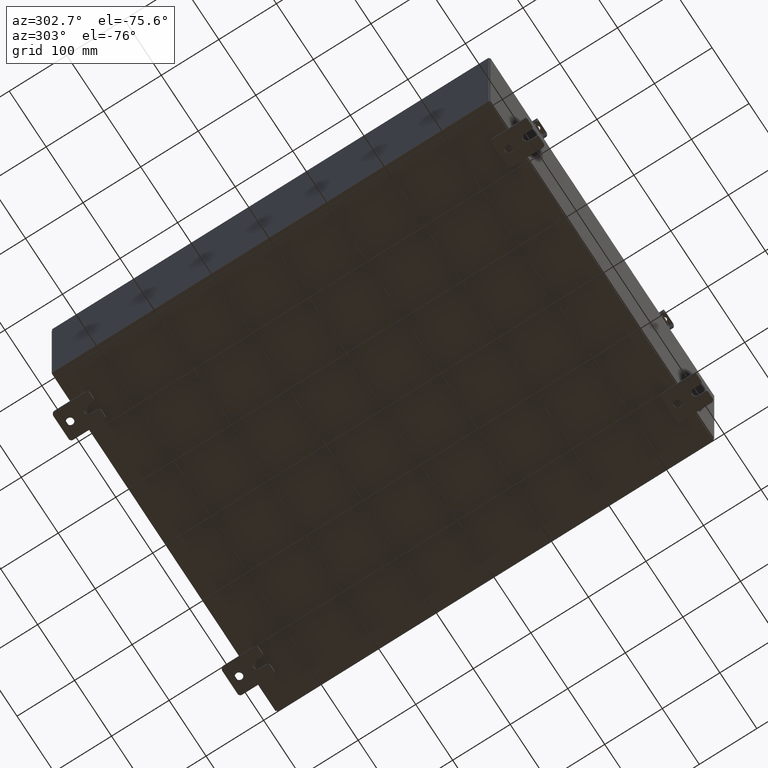
[diagram: clean part render]
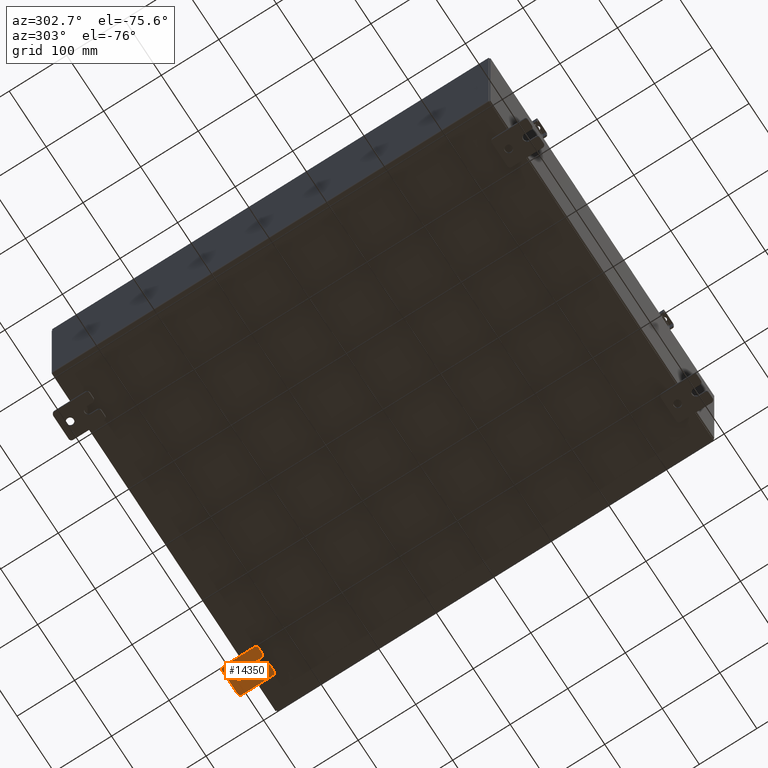
[diagram: same view with one face highlighted and labeled with its STEP entity id]
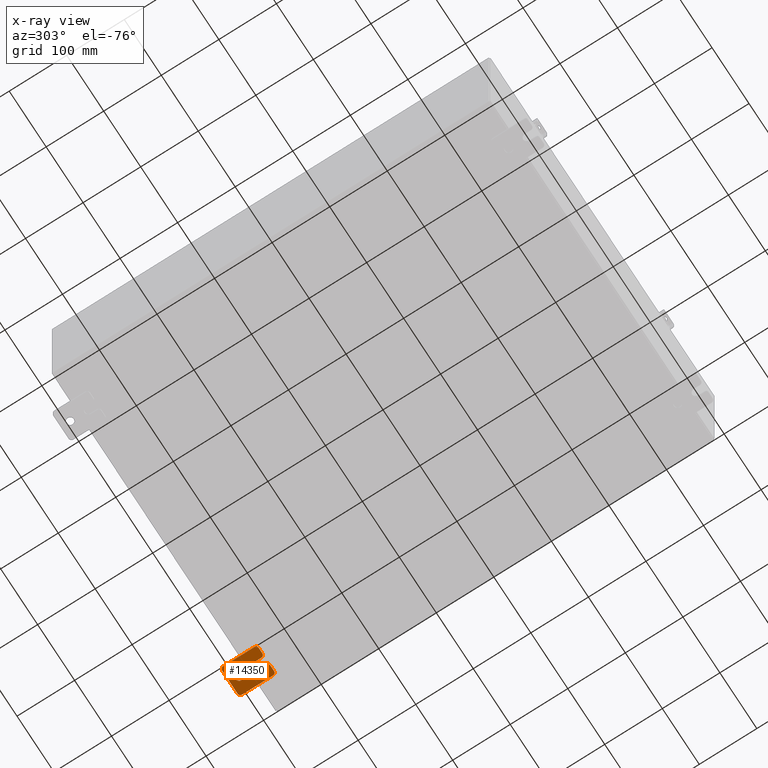
[diagram: x-ray of the same camera — body ghosted, the highlighted face saturated]
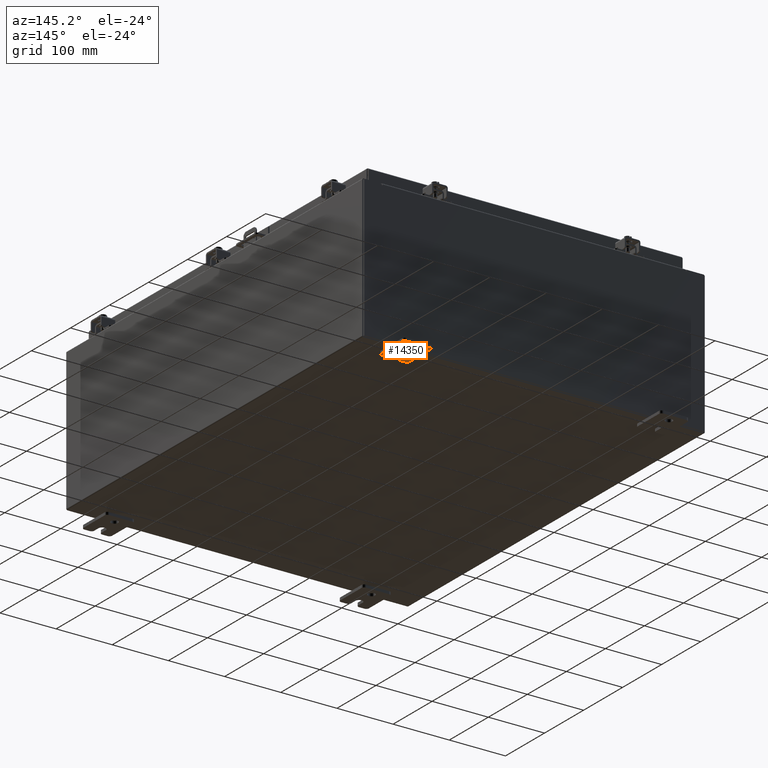
[diagram: same view with one face highlighted and labeled with its STEP entity id]
A machine part, auxiliary view. The second image highlights one B-rep face of the part: STEP entity #14350.
The next image is the same camera in x-ray: the body ghosted, the highlighted face saturated — about 0% of this face is hidden behind the body in this view.
A second angle (auxiliary view) of the same face is appended — the face is thin or edge-on in the first view.
In plain terms, the highlighted planar face has unit normal (0, 0, 1).
Its self-contained STEP definition (entity closure, byte-faithful):
#295 = EDGE_CURVE ( 'NONE', #27709, #28994, #11845, .T. ) ;
#386 = VERTEX_POINT ( 'NONE', #13009 ) ;
#525 = EDGE_CURVE ( 'NONE', #19830, #36301, #36174, .T. ) ;
#827 = EDGE_CURVE ( 'NONE', #2796, #36301, #26306, .T. ) ;
#925 = CARTESIAN_POINT ( 'NONE',  ( -0.1880000000000010000, 0.6249999999999992200, 0.2499999999999999200 ) ) ;
#1029 = EDGE_CURVE ( 'NONE', #386, #19552, #18156, .T. ) ;
#1321 = VERTEX_POINT ( 'NONE', #21055 ) ;
#1610 = ORIENTED_EDGE ( 'NONE', *, *, #1029, .F. ) ;
#2025 = EDGE_CURVE ( 'NONE', #19114, #11041, #33884, .T. ) ;
#2321 = DIRECTION ( 'NONE',  ( -1.000000000000000000, -0.0000000000000000000, 0.0000000000000000000 ) ) ;
#2388 = CIRCLE ( 'NONE', #9984, 0.1900000000000011100 ) ;
#2408 = CARTESIAN_POINT ( 'NONE',  ( -0.1880000000000001900, -0.6249999999999992200, 0.2500000000000005000 ) ) ;
#2484 = DIRECTION ( 'NONE',  ( 0.0000000000000000000, 0.0000000000000000000, -1.000000000000000000 ) ) ;
#2561 = CARTESIAN_POINT ( 'NONE',  ( -0.1879999999999997800, -1.060000000000002100, 0.4400000000000016700 ) ) ;
#2689 = VECTOR ( 'NONE', #3991, 39.37007874015748100 ) ;
#2758 = EDGE_CURVE ( 'NONE', #5000, #19034, #19527, .T. ) ;
#2761 = ORIENTED_EDGE ( 'NONE', *, *, #33302, .F. ) ;
#2796 = VERTEX_POINT ( 'NONE', #31759 ) ;
#3612 = LINE ( 'NONE', #29963, #2689 ) ;
#3622 = AXIS2_PLACEMENT_3D ( 'NONE', #31583, #12916, #35962 ) ;
#3685 = DIRECTION ( 'NONE',  ( 1.000000000000000000, -0.0000000000000000000, -5.163192708025532000E-017 ) ) ;
#3991 = DIRECTION ( 'NONE',  ( 6.556435184794182400E-016, 1.000000000000000000, 0.0000000000000000000 ) ) ;
#4066 = CARTESIAN_POINT ( 'NONE',  ( -0.1879999999999997800, 1.059999999999993400, -1.000000000000010000 ) ) ;
#4185 = EDGE_CURVE ( 'NONE', #1321, #28994, #17596, .T. ) ;
#4392 = ORIENTED_EDGE ( 'NONE', *, *, #295, .T. ) ;
#5000 = VERTEX_POINT ( 'NONE', #34834 ) ;
#5083 = VERTEX_POINT ( 'NONE', #27939 ) ;
#5758 = VERTEX_POINT ( 'NONE', #33318 ) ;
#5792 = AXIS2_PLACEMENT_3D ( 'NONE', #7058, #7050, #7013 ) ;
#6580 = AXIS2_PLACEMENT_3D ( 'NONE', #9388, #29620, #12330 ) ;
#6792 = AXIS2_PLACEMENT_3D ( 'NONE', #26422, #9062, #29300 ) ;
#7009 = ORIENTED_EDGE ( 'NONE', *, *, #525, .T. ) ;
#7013 = DIRECTION ( 'NONE',  ( 0.0000000000000000000, 0.0000000000000000000, -1.000000000000000000 ) ) ;
#7050 = DIRECTION ( 'NONE',  ( 1.000000000000000000, -0.0000000000000000000, -5.163192708025532000E-017 ) ) ;
#7058 = CARTESIAN_POINT ( 'NONE',  ( -0.1880000000000010000, 0.6249999999999992200, -7.703811342100550500E-020 ) ) ;
#7076 = VERTEX_POINT ( 'NONE', #2408 ) ;
#7224 = ORIENTED_EDGE ( 'NONE', *, *, #37345, .F. ) ;
#7354 = ORIENTED_EDGE ( 'NONE', *, *, #4185, .F. ) ;
#8564 = EDGE_LOOP ( 'NONE', ( #23155, #21330 ) ) ;
#8669 = CARTESIAN_POINT ( 'NONE',  ( -0.1879999999999997800, -1.250000000000005600, -1.000000000000006200 ) ) ;
#9062 = DIRECTION ( 'NONE',  ( -1.000000000000000000, -0.0000000000000000000, 0.0000000000000000000 ) ) ;
#9388 = CARTESIAN_POINT ( 'NONE',  ( -0.1879999999999997800, 1.059999999999993600, -0.8100000000000089400 ) ) ;
#9776 = ORIENTED_EDGE ( 'NONE', *, *, #827, .F. ) ;
#9853 = VECTOR ( 'NONE', #12958, 39.37007874015748100 ) ;
#9984 = AXIS2_PLACEMENT_3D ( 'NONE', #33253, #15984, #36145 ) ;
#10390 = VECTOR ( 'NONE', #28020, 39.37007874015748100 ) ;
#11041 = VERTEX_POINT ( 'NONE', #925 ) ;
#11060 = EDGE_CURVE ( 'NONE', #5758, #19034, #36995, .T. ) ;
#11651 = AXIS2_PLACEMENT_3D ( 'NONE', #12203, #32378, #15109 ) ;
#11845 = CIRCLE ( 'NONE', #32175, 0.1900000000000011100 ) ;
#12203 = CARTESIAN_POINT ( 'NONE',  ( -0.1880000000000001900, -0.6249999999999992200, 6.829619984160658000E-017 ) ) ;
#12330 = DIRECTION ( 'NONE',  ( 0.0000000000000000000, 0.0000000000000000000, -1.000000000000000000 ) ) ;
#12771 = CARTESIAN_POINT ( 'NONE',  ( -0.1879999999999997800, -1.250000000000002200, 0.9999999999999992200 ) ) ;
#12780 = VERTEX_POINT ( 'NONE', #4066 ) ;
#12916 = DIRECTION ( 'NONE',  ( -1.000000000000000000, -0.0000000000000000000, 0.0000000000000000000 ) ) ;
#12958 = DIRECTION ( 'NONE',  ( 0.0000000000000000000, -1.639108796198553600E-015, -1.000000000000000000 ) ) ;
#13009 = CARTESIAN_POINT ( 'NONE',  ( -0.1880000000000001900, -0.6249999999999992200, -0.2499999999999998600 ) ) ;
#13096 = VECTOR ( 'NONE', #35597, 39.37007874015748100 ) ;
#13615 = ORIENTED_EDGE ( 'NONE', *, *, #31669, .F. ) ;
#14350 = ADVANCED_FACE ( 'NONE', ( #31970, #17584 ), #19249, .F. ) ;
#14733 = CARTESIAN_POINT ( 'NONE',  ( -0.1880000000000004700, -1.060000000000002100, 0.2500000000000005000 ) ) ;
#14910 = DIRECTION ( 'NONE',  ( 0.0000000000000000000, -1.000000000000000000, 1.639108796198558100E-015 ) ) ;
#15109 = DIRECTION ( 'NONE',  ( -6.829619984160660000E-016, -1.000000000000000000, 0.0000000000000000000 ) ) ;
#15550 = ORIENTED_EDGE ( 'NONE', *, *, #28982, .F. ) ;
#15824 = DIRECTION ( 'NONE',  ( 0.0000000000000000000, 0.0000000000000000000, -1.000000000000000000 ) ) ;
#15942 = DIRECTION ( 'NONE',  ( -1.000000000000000000, -0.0000000000000000000, 0.0000000000000000000 ) ) ;
#15984 = DIRECTION ( 'NONE',  ( -1.000000000000000000, -0.0000000000000000000, 0.0000000000000000000 ) ) ;
#16189 = CARTESIAN_POINT ( 'NONE',  ( -0.1879999999999997800, -1.060000000000004100, -0.8100000000000050500 ) ) ;
#16252 = ORIENTED_EDGE ( 'NONE', *, *, #2758, .T. ) ;
#17486 = CARTESIAN_POINT ( 'NONE',  ( -0.1879999999999997800, -1.060000000000004500, -1.000000000000006400 ) ) ;
#17584 = FACE_OUTER_BOUND ( 'NONE', #21098, .T. ) ;
#17596 = LINE ( 'NONE', #12771, #9853 ) ;
#17711 = VECTOR ( 'NONE', #32611, 39.37007874015748100 ) ;
#18156 = LINE ( 'NONE', #27971, #10390 ) ;
#19027 = DIRECTION ( 'NONE',  ( -0.0000000000000000000, 0.0000000000000000000, -1.000000000000000000 ) ) ;
#19034 = VERTEX_POINT ( 'NONE', #30363 ) ;
#19114 = VERTEX_POINT ( 'NONE', #29477 ) ;
#19119 = DIRECTION ( 'NONE',  ( 1.000000000000000000, 0.0000000000000000000, -0.0000000000000000000 ) ) ;
#19249 = PLANE ( 'NONE',  #24037 ) ;
#19527 = CIRCLE ( 'NONE', #3622, 0.1900000000000011100 ) ;
#19552 = VERTEX_POINT ( 'NONE', #20417 ) ;
#19830 = VERTEX_POINT ( 'NONE', #14733 ) ;
#20335 = DIRECTION ( 'NONE',  ( 0.0000000000000000000, 1.000000000000000000, -1.639108796198558100E-015 ) ) ;
#20417 = CARTESIAN_POINT ( 'NONE',  ( -0.1880000000000004700, -1.060000000000003400, -0.2499999999999994400 ) ) ;
#20432 = LINE ( 'NONE', #32159, #27222 ) ;
#20534 = CARTESIAN_POINT ( 'NONE',  ( -0.1879999999999997800, 0.0000000000000000000, 0.0000000000000000000 ) ) ;
#20878 = ORIENTED_EDGE ( 'NONE', *, *, #11060, .F. ) ;
#21055 = CARTESIAN_POINT ( 'NONE',  ( -0.1879999999999997800, -1.250000000000004700, -0.4400000000000002200 ) ) ;
#21098 = EDGE_LOOP ( 'NONE', ( #9776, #32260, #2761, #16252, #20878, #33959, #13615, #4392, #7354, #23078, #1610, #15550, #7224, #7009 ) ) ;
#21106 = CARTESIAN_POINT ( 'NONE',  ( -0.1880000000000010000, 0.6249999999999992200, -7.703811342100550500E-020 ) ) ;
#21330 = ORIENTED_EDGE ( 'NONE', *, *, #33394, .T. ) ;
#23078 = ORIENTED_EDGE ( 'NONE', *, *, #30171, .T. ) ;
#23155 = ORIENTED_EDGE ( 'NONE', *, *, #2025, .T. ) ;
#24026 = DIRECTION ( 'NONE',  ( 0.0000000000000000000, 0.0000000000000000000, -1.000000000000000000 ) ) ;
#24037 = AXIS2_PLACEMENT_3D ( 'NONE', #20534, #19119, #19027 ) ;
#24255 = CIRCLE ( 'NONE', #6792, 0.1900000000000011100 ) ;
#24516 = CIRCLE ( 'NONE', #24653, 0.2499999999999999200 ) ;
#24653 = AXIS2_PLACEMENT_3D ( 'NONE', #21106, #3685, #24026 ) ;
#26306 = LINE ( 'NONE', #32684, #17711 ) ;
#26422 = CARTESIAN_POINT ( 'NONE',  ( -0.1879999999999997800, -1.060000000000001600, 0.8099999999999978300 ) ) ;
#27222 = VECTOR ( 'NONE', #14910, 39.37007874015748100 ) ;
#27430 = CARTESIAN_POINT ( 'NONE',  ( -0.1879999999999997800, -1.250000000000003100, 0.4400000000000020000 ) ) ;
#27613 = AXIS2_PLACEMENT_3D ( 'NONE', #2561, #2321, #2484 ) ;
#27709 = VERTEX_POINT ( 'NONE', #17486 ) ;
#27939 = CARTESIAN_POINT ( 'NONE',  ( -0.1879999999999997800, -1.060000000000001200, 0.9999999999999988900 ) ) ;
#27971 = CARTESIAN_POINT ( 'NONE',  ( -0.1880000000000001900, -0.6249999999999992200, -0.2499999999999993900 ) ) ;
#28020 = DIRECTION ( 'NONE',  ( -6.556435184794182400E-016, -1.000000000000000000, -1.639108796198545600E-016 ) ) ;
#28982 = EDGE_CURVE ( 'NONE', #7076, #386, #29251, .T. ) ;
#28994 = VERTEX_POINT ( 'NONE', #35263 ) ;
#29251 = CIRCLE ( 'NONE', #11651, 0.2499999999999999200 ) ;
#29300 = DIRECTION ( 'NONE',  ( 0.0000000000000000000, 7.189073667537492800E-016, -1.000000000000000000 ) ) ;
#29477 = CARTESIAN_POINT ( 'NONE',  ( -0.1880000000000010000, 0.6249999999999992200, -0.2499999999999999200 ) ) ;
#29501 = VECTOR ( 'NONE', #20335, 39.37007874015748100 ) ;
#29620 = DIRECTION ( 'NONE',  ( -1.000000000000000000, -0.0000000000000000000, 0.0000000000000000000 ) ) ;
#29957 = EDGE_CURVE ( 'NONE', #2796, #5083, #24255, .T. ) ;
#29963 = CARTESIAN_POINT ( 'NONE',  ( -0.1880000000000005800, -1.250000000000003800, 0.2500000000000005000 ) ) ;
#30171 = EDGE_CURVE ( 'NONE', #1321, #19552, #2388, .T. ) ;
#30363 = CARTESIAN_POINT ( 'NONE',  ( -0.1879999999999997800, 1.249999999999997300, 0.8099999999999935000 ) ) ;
#30638 = EDGE_CURVE ( 'NONE', #5758, #12780, #34964, .T. ) ;
#31583 = CARTESIAN_POINT ( 'NONE',  ( -0.1879999999999997800, 1.059999999999996300, 0.8099999999999938400 ) ) ;
#31669 = EDGE_CURVE ( 'NONE', #27709, #12780, #37103, .T. ) ;
#31759 = CARTESIAN_POINT ( 'NONE',  ( -0.1879999999999997800, -1.250000000000002400, 0.8099999999999980500 ) ) ;
#31970 = FACE_BOUND ( 'NONE', #8564, .T. ) ;
#32159 = CARTESIAN_POINT ( 'NONE',  ( -0.1879999999999997800, 1.249999999999997600, 0.9999999999999951200 ) ) ;
#32175 = AXIS2_PLACEMENT_3D ( 'NONE', #16189, #15942, #15824 ) ;
#32260 = ORIENTED_EDGE ( 'NONE', *, *, #29957, .T. ) ;
#32378 = DIRECTION ( 'NONE',  ( -1.000000000000000000, 6.523827964459549700E-016, 5.163192708025532000E-017 ) ) ;
#32611 = DIRECTION ( 'NONE',  ( 0.0000000000000000000, -1.639108796198553600E-015, -1.000000000000000000 ) ) ;
#32684 = CARTESIAN_POINT ( 'NONE',  ( -0.1879999999999997800, -1.250000000000002200, 0.9999999999999992200 ) ) ;
#33253 = CARTESIAN_POINT ( 'NONE',  ( -0.1879999999999997800, -1.060000000000003400, -0.4400000000000005000 ) ) ;
#33302 = EDGE_CURVE ( 'NONE', #5000, #5083, #20432, .T. ) ;
#33318 = CARTESIAN_POINT ( 'NONE',  ( -0.1879999999999997800, 1.249999999999994700, -0.8100000000000092700 ) ) ;
#33394 = EDGE_CURVE ( 'NONE', #11041, #19114, #24516, .T. ) ;
#33884 = CIRCLE ( 'NONE', #5792, 0.2499999999999999200 ) ;
#33959 = ORIENTED_EDGE ( 'NONE', *, *, #30638, .T. ) ;
#34834 = CARTESIAN_POINT ( 'NONE',  ( -0.1879999999999997800, 1.059999999999996500, 0.9999999999999953400 ) ) ;
#34964 = CIRCLE ( 'NONE', #6580, 0.1900000000000011100 ) ;
#35263 = CARTESIAN_POINT ( 'NONE',  ( -0.1879999999999997800, -1.250000000000005300, -0.8100000000000047200 ) ) ;
#35597 = DIRECTION ( 'NONE',  ( 0.0000000000000000000, 1.639108796198553600E-015, 1.000000000000000000 ) ) ;
#35714 = CARTESIAN_POINT ( 'NONE',  ( -0.1879999999999997800, 1.249999999999994200, -1.000000000000010400 ) ) ;
#35962 = DIRECTION ( 'NONE',  ( 0.0000000000000000000, 0.0000000000000000000, -1.000000000000000000 ) ) ;
#36145 = DIRECTION ( 'NONE',  ( 0.0000000000000000000, 0.0000000000000000000, -1.000000000000000000 ) ) ;
#36174 = CIRCLE ( 'NONE', #27613, 0.1900000000000011400 ) ;
#36301 = VERTEX_POINT ( 'NONE', #27430 ) ;
#36995 = LINE ( 'NONE', #35714, #13096 ) ;
#37103 = LINE ( 'NONE', #8669, #29501 ) ;
#37345 = EDGE_CURVE ( 'NONE', #19830, #7076, #3612, .T. ) ;